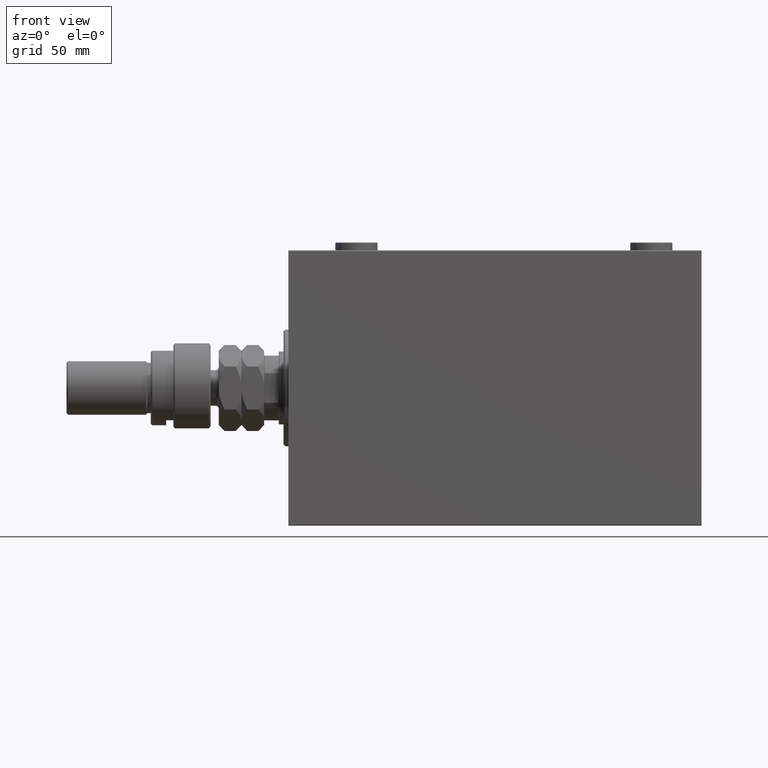
[diagram: clean part render]
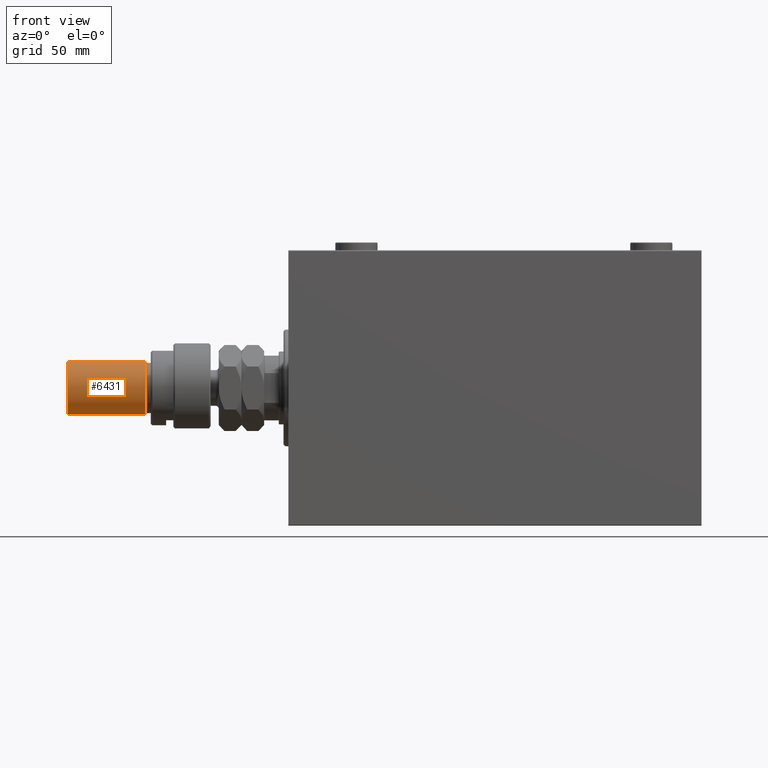
[diagram: same view with one face highlighted and labeled with its STEP entity id]
A machine part, front view. The second image highlights one B-rep face of the part: STEP entity #6431.
In plain terms, the highlighted cylindrical surface (edge-blend (fillet) strip) has radius 16.5 mm, axis along (1, -0, -0).
Its self-contained STEP definition (entity closure, byte-faithful):
#393 = AXIS2_PLACEMENT_3D ( 'NONE', #21851, #10607, #24765 ) ;
#1409 = DIRECTION ( 'NONE',  ( -0.000000000000000000, -0.000000000000000000, -1.000000000000000000 ) ) ;
#3020 = ORIENTED_EDGE ( 'NONE', *, *, #3773, .T. ) ;
#3773 = EDGE_CURVE ( 'NONE', #47498, #18544, #21214, .T. ) ;
#4576 = FACE_OUTER_BOUND ( 'NONE', #11154, .T. ) ;
#5623 = EDGE_CURVE ( 'NONE', #18544, #12376, #19884, .T. ) ;
#6431 = ADVANCED_FACE ( 'NONE', ( #4576 ), #46038, .T. ) ;
#8620 = DIRECTION ( 'NONE',  ( 0.000000000000000000, 0.000000000000000000, -1.000000000000000000 ) ) ;
#10302 = ORIENTED_EDGE ( 'NONE', *, *, #5623, .T. ) ;
#10607 = DIRECTION ( 'NONE',  ( -0.000000000000000000, -0.000000000000000000, 1.000000000000000000 ) ) ;
#11154 = EDGE_LOOP ( 'NONE', ( #23602, #45501, #3020, #10302 ) ) ;
#12376 = VERTEX_POINT ( 'NONE', #38347 ) ;
#13845 = CARTESIAN_POINT ( 'NONE',  ( -16.50000000000000000, 0.000000000000000000, 88.00000000000001421 ) ) ;
#17460 = VECTOR ( 'NONE', #43907, 1000.000000000000000 ) ;
#17467 = CARTESIAN_POINT ( 'NONE',  ( -16.50000000000000000, 0.000000000000000000, 39.99999999999998579 ) ) ;
#18044 = CARTESIAN_POINT ( 'NONE',  ( -16.50000000000000000, 0.000000000000000000, 89.00000000000000000 ) ) ;
#18544 = VERTEX_POINT ( 'NONE', #17467 ) ;
#19203 = CARTESIAN_POINT ( 'NONE',  ( 16.50000000000000000, 2.020667218593133100E-15, 88.00000000000001421 ) ) ;
#19884 = CIRCLE ( 'NONE', #393, 16.50000000000000000 ) ;
#20249 = CIRCLE ( 'NONE', #23355, 16.50000000000000000 ) ;
#21154 = EDGE_CURVE ( 'NONE', #24666, #47498, #20249, .T. ) ;
#21184 = DIRECTION ( 'NONE',  ( -0.000000000000000000, -0.000000000000000000, -1.000000000000000000 ) ) ;
#21214 = LINE ( 'NONE', #18044, #17460 ) ;
#21429 = EDGE_CURVE ( 'NONE', #24666, #12376, #46813, .T. ) ;
#21851 = CARTESIAN_POINT ( 'NONE',  ( 0.000000000000000000, 0.000000000000000000, 39.99999999999998579 ) ) ;
#23355 = AXIS2_PLACEMENT_3D ( 'NONE', #40000, #8620, #28777 ) ;
#23602 = ORIENTED_EDGE ( 'NONE', *, *, #21429, .F. ) ;
#24666 = VERTEX_POINT ( 'NONE', #19203 ) ;
#24765 = DIRECTION ( 'NONE',  ( 1.000000000000000000, 0.000000000000000000, 0.000000000000000000 ) ) ;
#26485 = VECTOR ( 'NONE', #21184, 1000.000000000000000 ) ;
#28777 = DIRECTION ( 'NONE',  ( 1.000000000000000000, 0.000000000000000000, 0.000000000000000000 ) ) ;
#31148 = DIRECTION ( 'NONE',  ( -1.000000000000000000, 0.000000000000000000, 0.000000000000000000 ) ) ;
#31921 = CARTESIAN_POINT ( 'NONE',  ( 16.50000000000000000, 2.020667218593133100E-15, 89.00000000000000000 ) ) ;
#33914 = AXIS2_PLACEMENT_3D ( 'NONE', #45084, #1409, #31148 ) ;
#38347 = CARTESIAN_POINT ( 'NONE',  ( 16.50000000000000000, 2.020667218593133100E-15, 39.99999999999998579 ) ) ;
#40000 = CARTESIAN_POINT ( 'NONE',  ( 0.000000000000000000, 0.000000000000000000, 88.00000000000001421 ) ) ;
#43907 = DIRECTION ( 'NONE',  ( -0.000000000000000000, -0.000000000000000000, -1.000000000000000000 ) ) ;
#45084 = CARTESIAN_POINT ( 'NONE',  ( 0.000000000000000000, 0.000000000000000000, 89.00000000000000000 ) ) ;
#45501 = ORIENTED_EDGE ( 'NONE', *, *, #21154, .T. ) ;
#46038 = CYLINDRICAL_SURFACE ( 'NONE', #33914, 16.50000000000000000 ) ;
#46813 = LINE ( 'NONE', #31921, #26485 ) ;
#47498 = VERTEX_POINT ( 'NONE', #13845 ) ;